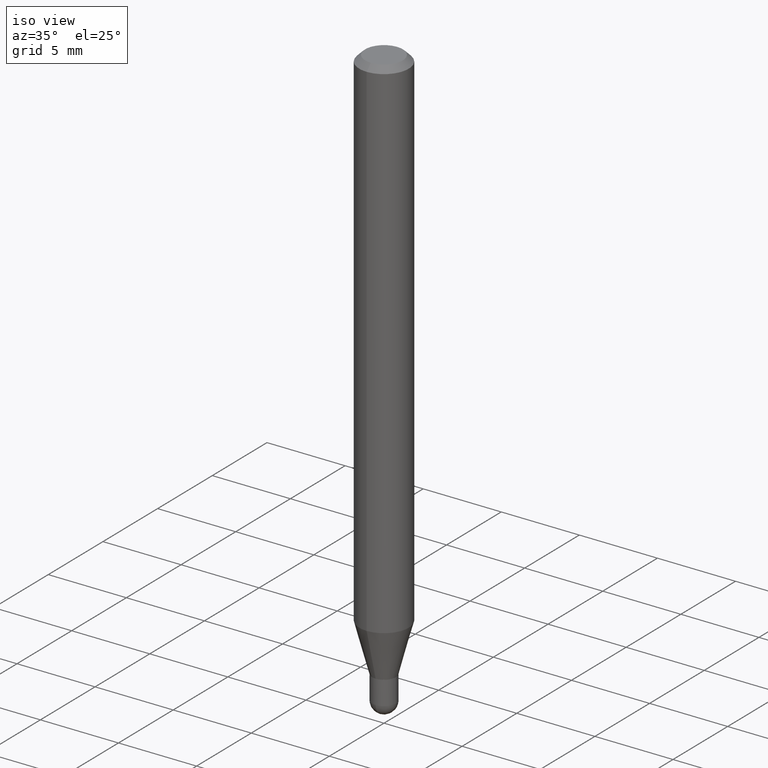
[diagram: clean part render]
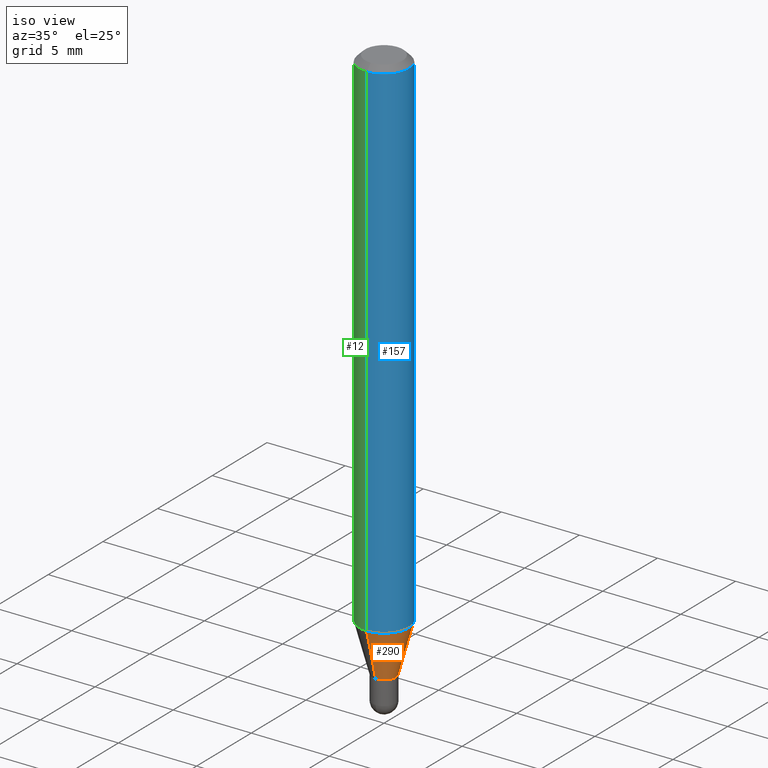
[diagram: same view with three faces highlighted in distinct colors, each labeled with its STEP entity id]
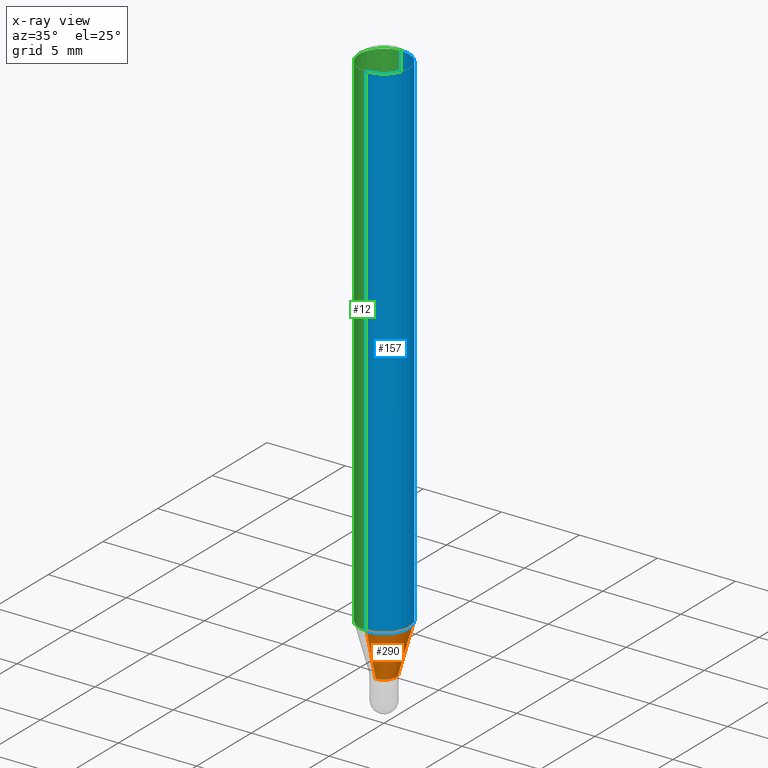
[diagram: x-ray of the same camera — body ghosted, the three highlighted faces saturated]
A machine part, iso view with three faces highlighted in distinct colors.
The next image is the same camera in x-ray (body ghosted, the three faces saturated) — at least one of them is partly hidden behind the body in this view.
Their STEP definitions:

[orange] entity #290 — the highlighted conical surface has half-angle 15 deg.
#2 = EDGE_CURVE ( 'NONE', #340, #117, #421, .T. ) ;
#10 = AXIS2_PLACEMENT_3D ( 'NONE', #388, #433, #124 ) ;
#14 = CARTESIAN_POINT ( 'NONE',  ( -4.364351673553602629E-16, -0.06250000000000452416, -1.288708348754016741 ) ) ;
#18 = LINE ( 'NONE', #137, #19 ) ;
#19 = VECTOR ( 'NONE', #256, 39.37007874015748143 ) ;
#45 = CARTESIAN_POINT ( 'NONE',  ( 3.286260152890810419E-16, 0.02999999999999555106, -1.409999999999999920 ) ) ;
#100 = ORIENTED_EDGE ( 'NONE', *, *, #495, .T. ) ;
#106 = DIRECTION ( 'NONE',  ( -2.445475654733798440E-29, 3.491471531331666661E-15, 1.000000000000000000 ) ) ;
#117 = VERTEX_POINT ( 'NONE', #14 ) ;
#124 = DIRECTION ( 'NONE',  ( -6.982962677686265922E-15, -1.000000000000000000, 0.000000000000000000 ) ) ;
#125 = DIRECTION ( 'NONE',  ( -2.445475654733798440E-29, 3.491471531331666661E-15, 1.000000000000000000 ) ) ;
#127 = ORIENTED_EDGE ( 'NONE', *, *, #2, .F. ) ;
#131 = ORIENTED_EDGE ( 'NONE', *, *, #424, .T. ) ;
#133 = CARTESIAN_POINT ( 'NONE',  ( 3.448120673174655335E-29, -4.922974859177649894E-15, -1.409999999999999920 ) ) ;
#137 = CARTESIAN_POINT ( 'NONE',  ( 2.131628207280678885E-16, 0.02999999999999555106, -1.409999999999999920 ) ) ;
#167 = EDGE_CURVE ( 'NONE', #117, #503, #417, .T. ) ;
#184 = DIRECTION ( 'NONE',  ( -6.982962677686265922E-15, -1.000000000000000000, 4.370956789862821150E-15 ) ) ;
#193 = EDGE_LOOP ( 'NONE', ( #100, #131, #257, #127 ) ) ;
#206 = CARTESIAN_POINT ( 'NONE',  ( -2.094888803305568117E-16, -0.03000000000000539388, -1.409999999999999920 ) ) ;
#256 = DIRECTION ( 'NONE',  ( 1.839019923739648830E-15, 0.2588190451025317862, 0.9659258262890653146 ) ) ;
#257 = ORIENTED_EDGE ( 'NONE', *, *, #167, .F. ) ;
#275 = CARTESIAN_POINT ( 'NONE',  ( -2.094888803305568117E-16, -0.03000000000000539388, -1.409999999999999920 ) ) ;
#289 = DIRECTION ( 'NONE',  ( -6.982962677686265922E-15, -1.000000000000000000, 0.000000000000000000 ) ) ;
#290 = ADVANCED_FACE ( 'NONE', ( #392 ), #403, .T. ) ;
#297 = CARTESIAN_POINT ( 'NONE',  ( 4.440892098500938748E-16, 0.06249999999999548278, -1.288708348754017408 ) ) ;
#327 = VECTOR ( 'NONE', #344, 39.37007874015748854 ) ;
#336 = VERTEX_POINT ( 'NONE', #45 ) ;
#340 = VERTEX_POINT ( 'NONE', #206 ) ;
#344 = DIRECTION ( 'NONE',  ( -1.807323732225377865E-15, -0.2588190451025250138, 0.9659258262890670910 ) ) ;
#345 = AXIS2_PLACEMENT_3D ( 'NONE', #133, #125, #289 ) ;
#358 = AXIS2_PLACEMENT_3D ( 'NONE', #386, #106, #184 ) ;
#386 = CARTESIAN_POINT ( 'NONE',  ( 3.151504892930142346E-29, -4.499488511864091280E-15, -1.288708348754017186 ) ) ;
#388 = CARTESIAN_POINT ( 'NONE',  ( 3.448120673174655335E-29, -4.922974859177649894E-15, -1.409999999999999920 ) ) ;
#392 = FACE_OUTER_BOUND ( 'NONE', #193, .T. ) ;
#403 = CONICAL_SURFACE ( 'NONE', #10, 0.03000000000000047420, 0.2617993877991573459 ) ;
#417 = CIRCLE ( 'NONE', #358, 0.06250000000000000000 ) ;
#421 = LINE ( 'NONE', #275, #327 ) ;
#424 = EDGE_CURVE ( 'NONE', #336, #503, #18, .T. ) ;
#433 = DIRECTION ( 'NONE',  ( -2.445475654733798440E-29, 3.491471531331666661E-15, 1.000000000000000000 ) ) ;
#439 = CIRCLE ( 'NONE', #345, 0.03000000000000047420 ) ;
#495 = EDGE_CURVE ( 'NONE', #340, #336, #439, .T. ) ;
#503 = VERTEX_POINT ( 'NONE', #297 ) ;

[blue] entity #157 — the highlighted cylindrical surface (edge-blend (fillet) strip) has radius 1.5875 mm, axis along (-0, 0, 1).
#14 = CARTESIAN_POINT ( 'NONE',  ( -4.364351673553602629E-16, -0.06250000000000452416, -1.288708348754016741 ) ) ;
#22 = CARTESIAN_POINT ( 'NONE',  ( -4.364351673553912750E-16, -0.06250000000000005551, -0.01499999999999984852 ) ) ;
#39 = CARTESIAN_POINT ( 'NONE',  ( 4.440892098500625669E-16, 0.06250000000000000000, -2.182169707082291663E-16 ) ) ;
#56 = CARTESIAN_POINT ( 'NONE',  ( 4.440892098500942692E-16, 0.06249999999999995143, -0.01500000000000028394 ) ) ;
#59 = AXIS2_PLACEMENT_3D ( 'NONE', #412, #454, #238 ) ;
#62 = CARTESIAN_POINT ( 'NONE',  ( 0.000000000000000000, 0.000000000000000000, 0.000000000000000000 ) ) ;
#103 = LINE ( 'NONE', #494, #400 ) ;
#104 = ORIENTED_EDGE ( 'NONE', *, *, #142, .F. ) ;
#106 = DIRECTION ( 'NONE',  ( -2.445475654733798440E-29, 3.491471531331666661E-15, 1.000000000000000000 ) ) ;
#109 = DIRECTION ( 'NONE',  ( -2.445475654733798440E-29, 3.491471531331666661E-15, 1.000000000000000000 ) ) ;
#113 = CIRCLE ( 'NONE', #59, 0.06250000000000000000 ) ;
#117 = VERTEX_POINT ( 'NONE', #14 ) ;
#119 = LINE ( 'NONE', #39, #152 ) ;
#142 = EDGE_CURVE ( 'NONE', #176, #506, #113, .T. ) ;
#150 = EDGE_CURVE ( 'NONE', #117, #176, #103, .T. ) ;
#152 = VECTOR ( 'NONE', #201, 39.37007874015748143 ) ;
#157 = ADVANCED_FACE ( 'NONE', ( #460 ), #379, .T. ) ;
#167 = EDGE_CURVE ( 'NONE', #117, #503, #417, .T. ) ;
#176 = VERTEX_POINT ( 'NONE', #22 ) ;
#178 = AXIS2_PLACEMENT_3D ( 'NONE', #62, #109, #191 ) ;
#184 = DIRECTION ( 'NONE',  ( -6.982962677686265922E-15, -1.000000000000000000, 4.370956789862821150E-15 ) ) ;
#191 = DIRECTION ( 'NONE',  ( -6.982962677686265922E-15, -1.000000000000000000, 3.491471531331666661E-15 ) ) ;
#201 = DIRECTION ( 'NONE',  ( -2.445475654733798160E-29, 3.491471531331666661E-15, 1.000000000000000000 ) ) ;
#238 = DIRECTION ( 'NONE',  ( -6.982962677686265922E-15, -1.000000000000000000, 3.483106191921935554E-15 ) ) ;
#243 = EDGE_CURVE ( 'NONE', #503, #506, #119, .T. ) ;
#292 = ORIENTED_EDGE ( 'NONE', *, *, #243, .T. ) ;
#297 = CARTESIAN_POINT ( 'NONE',  ( 4.440892098500938748E-16, 0.06249999999999548278, -1.288708348754017408 ) ) ;
#310 = ORIENTED_EDGE ( 'NONE', *, *, #167, .T. ) ;
#358 = AXIS2_PLACEMENT_3D ( 'NONE', #386, #106, #184 ) ;
#371 = ORIENTED_EDGE ( 'NONE', *, *, #150, .F. ) ;
#379 = CYLINDRICAL_SURFACE ( 'NONE', #178, 0.06250000000000000000 ) ;
#386 = CARTESIAN_POINT ( 'NONE',  ( 3.151504892930142346E-29, -4.499488511864091280E-15, -1.288708348754017186 ) ) ;
#400 = VECTOR ( 'NONE', #470, 39.37007874015748143 ) ;
#412 = CARTESIAN_POINT ( 'NONE',  ( 3.668213482100713880E-31, -5.237207296997522795E-17, -0.01500000000000006710 ) ) ;
#414 = EDGE_LOOP ( 'NONE', ( #310, #292, #104, #371 ) ) ;
#417 = CIRCLE ( 'NONE', #358, 0.06250000000000000000 ) ;
#454 = DIRECTION ( 'NONE',  ( -2.445475654733798440E-29, 3.491471531331666661E-15, 1.000000000000000000 ) ) ;
#460 = FACE_OUTER_BOUND ( 'NONE', #414, .T. ) ;
#470 = DIRECTION ( 'NONE',  ( -2.445475654733798160E-29, 3.491471531331666661E-15, 1.000000000000000000 ) ) ;
#494 = CARTESIAN_POINT ( 'NONE',  ( -4.364351673553916201E-16, -0.06250000000000000000, 2.182169707082291663E-16 ) ) ;
#503 = VERTEX_POINT ( 'NONE', #297 ) ;
#506 = VERTEX_POINT ( 'NONE', #56 ) ;

[green] entity #12 — the highlighted cylindrical surface (edge-blend (fillet) strip) has radius 1.5875 mm, axis along (-0, 0, 1).
#12 = ADVANCED_FACE ( 'NONE', ( #25 ), #190, .T. ) ;
#13 = ORIENTED_EDGE ( 'NONE', *, *, #150, .T. ) ;
#14 = CARTESIAN_POINT ( 'NONE',  ( -4.364351673553602629E-16, -0.06250000000000452416, -1.288708348754016741 ) ) ;
#22 = CARTESIAN_POINT ( 'NONE',  ( -4.364351673553912750E-16, -0.06250000000000005551, -0.01499999999999984852 ) ) ;
#25 = FACE_OUTER_BOUND ( 'NONE', #333, .T. ) ;
#39 = CARTESIAN_POINT ( 'NONE',  ( 4.440892098500625669E-16, 0.06250000000000000000, -2.182169707082291663E-16 ) ) ;
#55 = ORIENTED_EDGE ( 'NONE', *, *, #444, .F. ) ;
#56 = CARTESIAN_POINT ( 'NONE',  ( 4.440892098500942692E-16, 0.06249999999999995143, -0.01500000000000028394 ) ) ;
#57 = ORIENTED_EDGE ( 'NONE', *, *, #243, .F. ) ;
#91 = CARTESIAN_POINT ( 'NONE',  ( 3.668213482100713880E-31, -5.237207296997522795E-17, -0.01500000000000006710 ) ) ;
#103 = LINE ( 'NONE', #494, #400 ) ;
#117 = VERTEX_POINT ( 'NONE', #14 ) ;
#119 = LINE ( 'NONE', #39, #152 ) ;
#150 = EDGE_CURVE ( 'NONE', #117, #176, #103, .T. ) ;
#152 = VECTOR ( 'NONE', #201, 39.37007874015748143 ) ;
#174 = EDGE_CURVE ( 'NONE', #503, #117, #251, .T. ) ;
#176 = VERTEX_POINT ( 'NONE', #22 ) ;
#190 = CYLINDRICAL_SURFACE ( 'NONE', #295, 0.06250000000000000000 ) ;
#201 = DIRECTION ( 'NONE',  ( -2.445475654733798160E-29, 3.491471531331666661E-15, 1.000000000000000000 ) ) ;
#203 = ORIENTED_EDGE ( 'NONE', *, *, #174, .T. ) ;
#223 = DIRECTION ( 'NONE',  ( -6.982962677686265922E-15, -1.000000000000000000, 3.483106191921935554E-15 ) ) ;
#243 = EDGE_CURVE ( 'NONE', #503, #506, #119, .T. ) ;
#251 = CIRCLE ( 'NONE', #426, 0.06250000000000000000 ) ;
#266 = AXIS2_PLACEMENT_3D ( 'NONE', #91, #338, #223 ) ;
#295 = AXIS2_PLACEMENT_3D ( 'NONE', #423, #387, #385 ) ;
#297 = CARTESIAN_POINT ( 'NONE',  ( 4.440892098500938748E-16, 0.06249999999999548278, -1.288708348754017408 ) ) ;
#333 = EDGE_LOOP ( 'NONE', ( #57, #203, #13, #55 ) ) ;
#338 = DIRECTION ( 'NONE',  ( -2.445475654733798440E-29, 3.491471531331666661E-15, 1.000000000000000000 ) ) ;
#385 = DIRECTION ( 'NONE',  ( -6.982962677686265922E-15, -1.000000000000000000, 3.491471531331666661E-15 ) ) ;
#387 = DIRECTION ( 'NONE',  ( -2.445475654733798440E-29, 3.491471531331666661E-15, 1.000000000000000000 ) ) ;
#400 = VECTOR ( 'NONE', #470, 39.37007874015748143 ) ;
#420 = DIRECTION ( 'NONE',  ( -2.445475654733798440E-29, 3.491471531331666661E-15, 1.000000000000000000 ) ) ;
#423 = CARTESIAN_POINT ( 'NONE',  ( 0.000000000000000000, 0.000000000000000000, 0.000000000000000000 ) ) ;
#426 = AXIS2_PLACEMENT_3D ( 'NONE', #505, #420, #430 ) ;
#430 = DIRECTION ( 'NONE',  ( -6.982962677686265922E-15, -1.000000000000000000, 4.370956789862821150E-15 ) ) ;
#444 = EDGE_CURVE ( 'NONE', #506, #176, #489, .T. ) ;
#470 = DIRECTION ( 'NONE',  ( -2.445475654733798160E-29, 3.491471531331666661E-15, 1.000000000000000000 ) ) ;
#489 = CIRCLE ( 'NONE', #266, 0.06250000000000000000 ) ;
#494 = CARTESIAN_POINT ( 'NONE',  ( -4.364351673553916201E-16, -0.06250000000000000000, 2.182169707082291663E-16 ) ) ;
#503 = VERTEX_POINT ( 'NONE', #297 ) ;
#505 = CARTESIAN_POINT ( 'NONE',  ( 3.151504892930142346E-29, -4.499488511864091280E-15, -1.288708348754017186 ) ) ;
#506 = VERTEX_POINT ( 'NONE', #56 ) ;